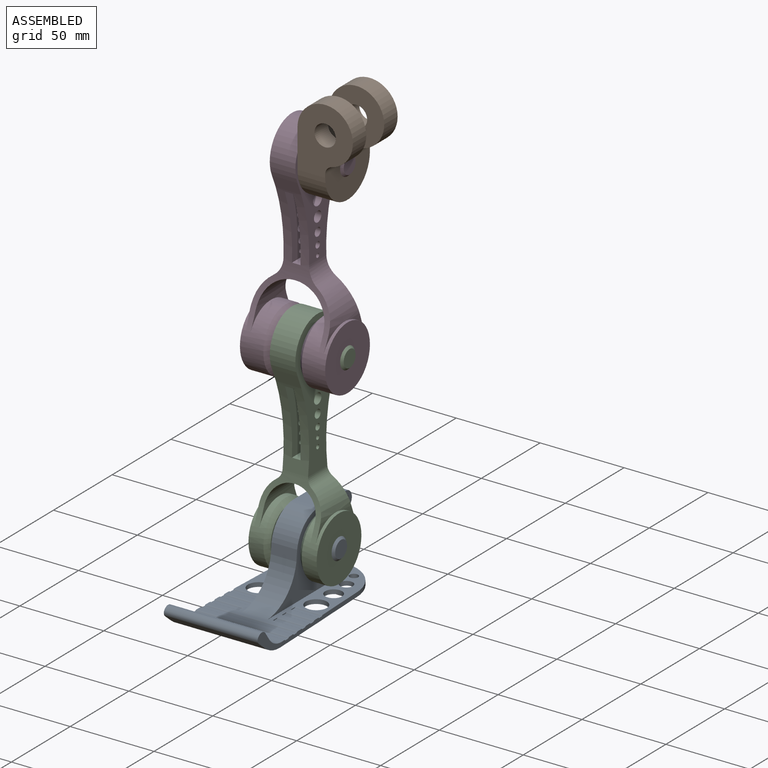
[diagram: assembled view]
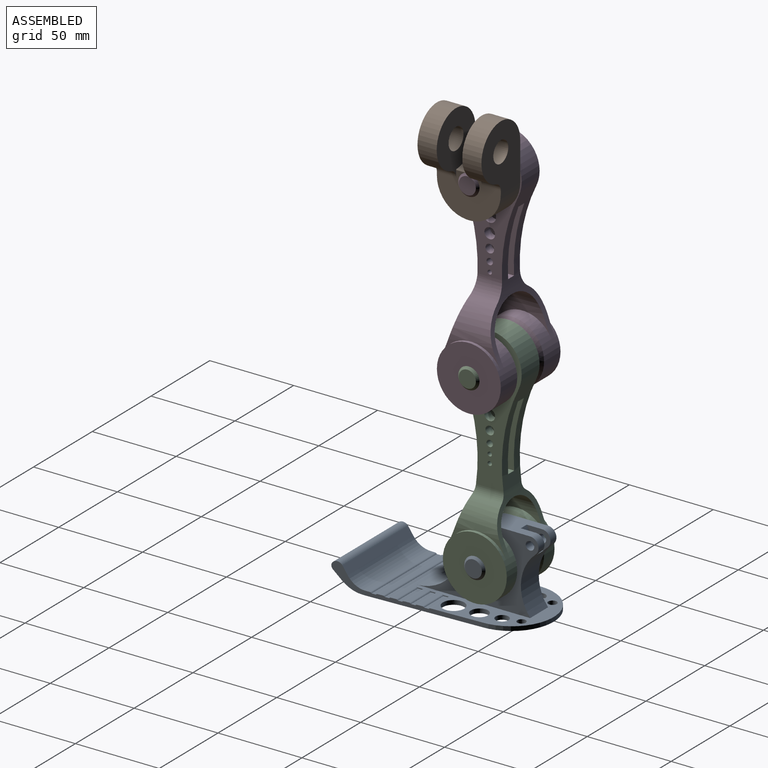
[diagram: assembled view, second angle]
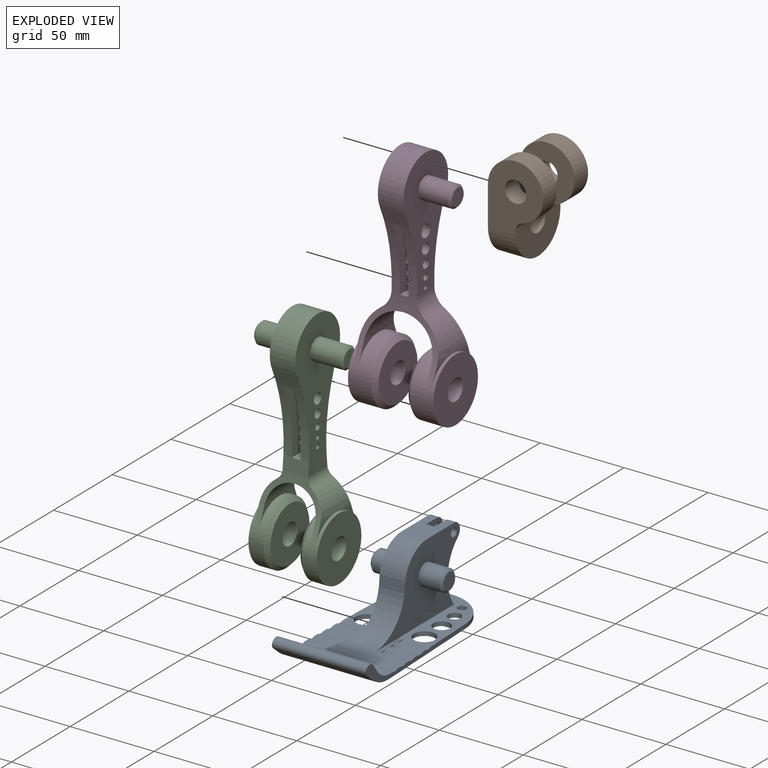
[diagram: exploded view]
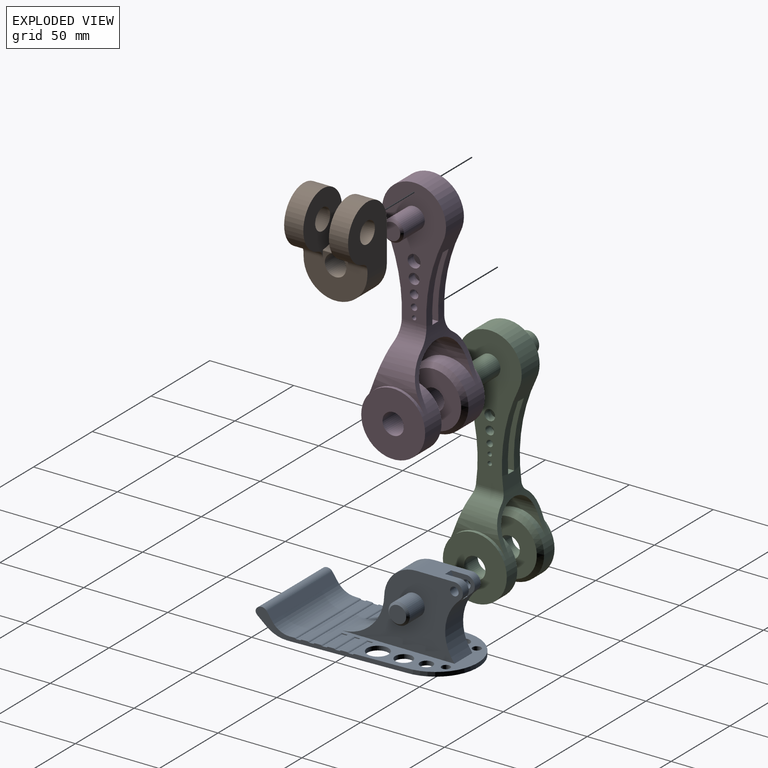
[diagram: exploded view, second angle]
ASSEMBLY  parts=4 mates=3
PART A: 97 faces, bbox 55.9x113x47.5 mm
  f0: plane 77.94x54.68mm, normal (0,0,1), area 2114.6mm2, adj f4,f8,f9,f22,f25,f26,f50,f52
  f1: plane 94.46x55.88mm, normal (0,0,-1), area 3970.7mm2, adj f2,f3,f8,f9,f10,f11,f16,f42
  f2: torus R=1.52mm, axis (0,0,-1), area 10.7mm2, adj f1,f39,f91
  f3: torus R=1.3mm, axis (0,0,1), area 5.1mm2, adj f1,f89
  f4: cylinder r=25.4mm len=35.06mm, axis (-1,0,0), area 575.1mm2, adj f0,f5,f23,f25,f26,f85,f86,f88
  f5: cylinder r=5.08mm len=8.92mm, axis (-1,0,0), area 62.7mm2, adj f4,f6,f26,f85
  f6: plane 22.72x15.24mm, normal (0,0,1), area 300.4mm2, adj f5,f23,f24,f25,f26,f85,f86,f87
  f7: cylinder r=2.54mm len=5.08mm, axis (1,0,0), area 81.1mm2, adj f26,f85
  f8: plane 67.32x2.77mm, normal (-1,0.04,0), area 163.1mm2, adj f0,f1,f11,f12,f17,f51,f53,f54
  f9: plane 67.32x2.77mm, normal (1,0.04,0), area 163.1mm2, adj f0,f1,f10,f12,f17,f54,f55,f59
  f10: plane 20.5x14.03mm, normal (1,0,0), area 103.9mm2, adj f1,f9,f13,f14,f15,f16,f17,f18
  f11: plane 20.5x14.03mm, normal (-1,0,0), area 103.9mm2, adj f1,f8,f13,f14,f15,f16,f17,f18
  f12: plane 55.31x3.05mm, normal (0,0,1), area 168.2mm2, adj f8,f9,f66,f69
  f13: plane 55.88x0.12mm, normal (0,-0.77,0.64), area 8.4mm2, adj f10,f11,f14,f20
  f14: cylinder r=2.54mm len=55.88mm, axis (-1,0,0), area 223mm2, adj f10,f11,f13,f15
  f15: plane 55.88x5.39mm, normal (0,-0.64,-0.77), area 393.2mm2, adj f10,f11,f14,f16
  f16: cylinder r=19.05mm len=55.88mm, axis (-1,0,0), area 743.2mm2, adj f1,f10,f11,f15
  f17: plane 55.88x2.62mm, normal (0,0,1), area 146.3mm2, adj f8,f9,f10,f11,f18,f68
  f18: cylinder r=12.7mm len=55.88mm, axis (-1,0,0), area 681.2mm2, adj f10,f11,f17,f19
  f19: plane 55.88x4.45mm, normal (0,0.82,0.57), area 303.8mm2, adj f10,f11,f18,f20
  f20: cylinder r=3.81mm len=55.88mm, axis (-1,0,0), area 390.2mm2, adj f10,f11,f13,f19
  f21: cylinder r=26.05mm len=25.39mm, axis (-1,0,0), area 600.5mm2, adj f22,f24,f25,f26
  f22: plane 24.51x15.24mm, normal (0,0,-1), area 373.6mm2, adj f0,f21,f25,f26
  f23: cylinder r=5.08mm len=8.92mm, axis (-1,0,0), area 62.7mm2, adj f4,f6,f25,f86
  f24: cylinder r=19.05mm len=19.04mm, axis (-1,0,0), area 448.8mm2, adj f6,f21,f25,f26
  f25: plane 72.02x43.98mm, normal (1,0,0), area 1683.5mm2, adj f0,f4,f6,f21,f22,f23,f24,f27
  f26: plane 72.02x43.98mm, normal (-1,0,0), area 1683.5mm2, adj f0,f4,f5,f6,f7,f21,f22,f24
  f27: cylinder r=6.35mm len=12.7mm, axis (-1,0,0), area 506.7mm2, adj f25,f32
  f28: plane 10.16x10.16mm, normal (1,0,0), area 81.1mm2, adj f32
  f29: cylinder r=6.35mm len=12.7mm, axis (1,0,0), area 506.7mm2, adj f26,f31
  f30: plane 10.16x10.16mm, normal (-1,0,0), area 81.1mm2, adj f31
  f31: cone r=6.35mm half-angle=45deg, axis (1,0,0), area 64.5mm2, adj f29,f30
  f32: cone r=5.08mm half-angle=45deg, axis (-1,0,0), area 64.5mm2, adj f27,f28
  f33: plane 2.44x2.22mm, normal (0,0,-1), area 2.2mm2, adj f42,f92
  f34: plane 3.05x3.05mm, normal (0,0,-1), area 7.3mm2, adj f49
  f35: plane 3.05x3.05mm, normal (0,0,-1), area 7.3mm2, adj f48
  f36: plane 3.05x3.05mm, normal (0,0,-1), area 7.3mm2, adj f47
  f37: plane 3.05x3.05mm, normal (0,0,-1), area 7.3mm2, adj f46
  f38: plane 3.05x3.05mm, normal (0,0,-1), area 7.3mm2, adj f45
  f39: plane 2.44x2.22mm, normal (0,0,-1), area 2.2mm2, adj f2,f91
  f40: plane 3.05x3.05mm, normal (0,0,-1), area 7.3mm2, adj f44
  f41: plane 3.05x3.05mm, normal (0,0,-1), area 7.3mm2, adj f43
  f42: torus R=1.52mm, axis (0,0,-1), area 10.7mm2, adj f1,f33,f92
  f43: torus R=1.52mm, axis (0,0,-1), area 21.8mm2, adj f1,f41
  f44: torus R=1.52mm, axis (0,0,-1), area 21.8mm2, adj f1,f40
  f45: torus R=1.52mm, axis (0,0,-1), area 21.8mm2, adj f1,f38
  f46: torus R=1.52mm, axis (0,0,-1), area 21.8mm2, adj f1,f37
  f47: torus R=1.52mm, axis (0,0,-1), area 21.8mm2, adj f1,f36
  f48: torus R=1.52mm, axis (0,0,-1), area 21.8mm2, adj f1,f35
  f49: torus R=1.52mm, axis (0,0,-1), area 21.8mm2, adj f1,f34
  f50: plane 4.57x0.51mm, normal (-1,0,0), area 1.6mm2, adj f0,f51,f76,f77
  f51: plane 16.7x2.54mm, normal (0,0,1), area 42.3mm2, adj f8,f50,f76,f77
  f52: plane 4.57x0.51mm, normal (-1,0,0), area 1.6mm2, adj f0,f53,f72,f73
  f53: plane 16.39x2.54mm, normal (0,0,1), area 41.5mm2, adj f8,f52,f72,f73
  f54: plane 55.6x2.54mm, normal (0,0,1), area 141mm2, adj f8,f9,f68,f69
  f55: plane 54.98x2.54mm, normal (0,0,1), area 139.4mm2, adj f8,f9,f66,f67
  f56: plane 4.57x0.51mm, normal (-1,0,0), area 1.6mm2, adj f0,f57,f64,f65
  f57: plane 17.01x2.54mm, normal (0,0,1), area 43.1mm2, adj f8,f56,f64,f65
  f58: plane 4.57x0.51mm, normal (1,0,0), area 1.6mm2, adj f0,f59,f78,f79
  f59: plane 17.01x2.54mm, normal (0,0,1), area 43.1mm2, adj f9,f58,f78,f79
  f60: plane 4.57x0.51mm, normal (1,0,0), area 1.6mm2, adj f0,f61,f74,f75
  f61: plane 16.7x2.54mm, normal (0,0,1), area 42.3mm2, adj f9,f60,f74,f75
  f62: plane 4.57x0.51mm, normal (1,0,0), area 1.6mm2, adj f0,f63,f70,f71
  f63: plane 16.39x2.54mm, normal (0,0,1), area 41.5mm2, adj f9,f62,f70,f71
  f64: cylinder r=1.27mm len=17.06mm, axis (-1,0,0), area 20.1mm2, adj f0,f8,f56,f57
  f65: cylinder r=1.27mm len=16.91mm, axis (-1,0,0), area 19.9mm2, adj f0,f8,f56,f57
  f66: cylinder r=1.27mm len=55.06mm, axis (-1,0,0), area 64.8mm2, adj f8,f9,f12,f55
  f67: cylinder r=1.27mm len=54.77mm, axis (-1,0,0), area 64.4mm2, adj f0,f8,f9,f55
  f68: cylinder r=1.27mm len=55.69mm, axis (-1,0,0), area 65.5mm2, adj f8,f9,f17,f54
  f69: cylinder r=1.27mm len=55.39mm, axis (-1,0,0), area 65.2mm2, adj f8,f9,f12,f54
  f70: cylinder r=1.27mm len=16.43mm, axis (-1,0,0), area 19.3mm2, adj f0,f9,f62,f63
  f71: cylinder r=1.27mm len=16.28mm, axis (-1,0,0), area 19.2mm2, adj f0,f9,f62,f63
  f72: cylinder r=1.27mm len=16.43mm, axis (-1,0,0), area 19.3mm2, adj f0,f8,f52,f53
  f73: cylinder r=1.27mm len=16.28mm, axis (-1,0,0), area 19.2mm2, adj f0,f8,f52,f53
  f74: cylinder r=1.27mm len=16.74mm, axis (-1,0,0), area 19.7mm2, adj f0,f9,f60,f61
  f75: cylinder r=1.27mm len=16.6mm, axis (-1,0,0), area 19.5mm2, adj f0,f9,f60,f61
  f76: cylinder r=1.27mm len=16.74mm, axis (-1,0,0), area 19.7mm2, adj f0,f8,f50,f51
  f77: cylinder r=1.27mm len=16.6mm, axis (-1,0,0), area 19.5mm2, adj f0,f8,f50,f51
  f78: cylinder r=1.27mm len=17.06mm, axis (-1,0,0), area 20.1mm2, adj f0,f9,f58,f59
  f79: cylinder r=1.27mm len=16.91mm, axis (-1,0,0), area 19.9mm2, adj f0,f9,f58,f59
  f80: plane 2.54x0.02mm, normal (0,-1,0), area 0mm2, adj f0,f1,f8,f82
  f81: plane 2.54x0.02mm, normal (0,-1,0), area 0mm2, adj f0,f1,f9,f82
  f82: cylinder r=25.19mm len=50.38mm, axis (0,0,-1), area 201mm2, adj f0,f1,f80,f81
  f83: torus R=1.3mm, axis (0,0,1), area 5.1mm2, adj f1,f90
  f84: cylinder r=2.54mm len=5.08mm, axis (1,0,0), area 81.1mm2, adj f25,f86
  f85: plane 14.13x11.43mm, normal (1,0,0), area 95.1mm2, adj f4,f5,f6,f7,f87,f88
  f86: plane 14.13x11.43mm, normal (-1,0,0), area 95.1mm2, adj f4,f6,f23,f84,f87,f88
  f87: plane 7.56x5.08mm, normal (0,0.92,0.39), area 41.7mm2, adj f6,f85,f86,f88
  f88: cylinder r=6.35mm len=6.7mm, axis (1,0,0), area 42.1mm2, adj f4,f85,f86,f87
  f89: cylinder r=2.54mm len=5.08mm, axis (0,0,1), area 44.6mm2, adj f0,f1,f3
  f90: cylinder r=2.54mm len=5.08mm, axis (0,0,1), area 44.6mm2, adj f0,f1,f83
  f91: cylinder r=5.08mm len=10.16mm, axis (0,0,1), area 86mm2, adj f0,f1,f2,f39
  f92: cylinder r=5.08mm len=10.16mm, axis (0,0,1), area 86mm2, adj f0,f1,f33,f42
  f93: cylinder r=6.35mm len=12.7mm, axis (0,0,1), area 101.3mm2, adj f0,f1
  f94: cylinder r=3.81mm len=7.62mm, axis (0,0,1), area 60.8mm2, adj f0,f1
  f95: cylinder r=6.35mm len=12.7mm, axis (0,0,1), area 101.3mm2, adj f0,f1
  f96: cylinder r=3.81mm len=7.62mm, axis (0,0,1), area 60.8mm2, adj f0,f1
PART B: 20 faces, bbox 33x38.1x58.4 mm
  f0: cylinder r=6.35mm len=12.7mm, axis (0,1,0), area 456mm2, adj f4,f11
  f1: cylinder r=16.51mm len=33.02mm, axis (0,1,0), area 844.4mm2, adj f4,f6,f11,f13
  f2: plane 38.1x24.9mm, normal (1,0,0), area 577.1mm2, adj f3,f4,f5,f7,f11,f12,f13,f14
  f3: cylinder r=19.05mm len=38.1mm, axis (-1,0,0), area 988.1mm2, adj f2,f4,f5,f6
  f4: plane 39.37x33.02mm, normal (0,1,0), area 896.7mm2, adj f0,f1,f2,f3,f6,f13
  f5: plane 39.37x33.02mm, normal (0,-1,0), area 896.7mm2, adj f2,f3,f6,f8,f9,f14
  f6: plane 41.91x38.1mm, normal (-1,0,0), area 1215.6mm2, adj f1,f3,f4,f5,f7,f9,f11,f12
  f7: cylinder r=6.35mm len=16.51mm, axis (1,0,0), area 658.7mm2, adj f2,f6,f15,f18
  f8: cylinder r=6.35mm len=12.7mm, axis (0,1,0), area 456mm2, adj f5,f12
  f9: cylinder r=16.51mm len=33.02mm, axis (0,1,0), area 844.4mm2, adj f5,f6,f12,f14
  f10: cylinder r=16.51mm len=15.29mm, axis (0,-1,0), area 291.5mm2, adj f11,f12,f15,f16,f17,f18,f19
  f11: plane 37.49x33.02mm, normal (0,-1,0), area 735.6mm2, adj f0,f1,f2,f6,f10,f13,f17,f19
  f12: plane 37.49x33.02mm, normal (0,1,0), area 735.6mm2, adj f2,f6,f8,f9,f10,f14,f16,f19
  f13: cylinder r=5.08mm len=11.43mm, axis (0,1,0), area 77.4mm2, adj f1,f2,f4,f11
  f14: cylinder r=5.08mm len=11.43mm, axis (0,1,0), area 77.4mm2, adj f2,f5,f9,f12
  f15: bspline ~2.72x0.6mm, area 0.6mm2, adj f7,f10,f16
  f16: cylinder r=0.51mm len=5.15mm, axis (0,-1,0), area 4mm2, adj f2,f10,f12,f15
  f17: cylinder r=0.51mm len=5.15mm, axis (0,-1,0), area 4mm2, adj f2,f10,f11,f18
  f18: bspline ~2.72x0.6mm, area 0.6mm2, adj f7,f10,f17
  f19: cylinder r=0.64mm len=15.24mm, axis (0,-1,0), area 26.7mm2, adj f6,f10,f11,f12
PART C: 48 faces, bbox 53.3x38.1x142.2 mm
  f0: cylinder r=101.6mm len=87.7mm, axis (-1,0,0), area 975.1mm2, adj f2,f3,f4,f5,f6,f7,f13,f14
  f1: cylinder r=101.6mm len=87.7mm, axis (-1,0,0), area 974.7mm2, adj f2,f3,f4,f5,f6,f7,f9,f10
  f2: cylinder r=15.24mm len=30.48mm, axis (0,1,0), area 970.1mm2, adj f0,f1,f7,f9,f10,f13,f14,f19
  f3: cylinder r=18.41mm len=26.39mm, axis (0,1,0), area 372.4mm2, adj f0,f1,f5,f11,f15,f19
  f4: cylinder r=18.41mm len=26.39mm, axis (0,1,0), area 372.4mm2, adj f0,f1,f6,f7,f12,f18
  f5: cylinder r=6.35mm len=18.09mm, axis (0,1,0), area 106.3mm2, adj f0,f1,f3,f16
  f6: cylinder r=6.35mm len=18.09mm, axis (0,1,0), area 106.3mm2, adj f0,f1,f4,f17
  f7: cylinder r=19.05mm len=38.1mm, axis (-1,0,0), area 927.7mm2, adj f0,f1,f2,f4,f9,f12,f13,f18
  f8: cylinder r=6.35mm len=12.7mm, axis (1,0,0), area 456mm2, adj f21,f23
  f9: plane 10.35x9.56mm, normal (1,0,0), area 16.7mm2, adj f1,f2,f7
  f10: plane 10.35x9.56mm, normal (-1,0,0), area 16.7mm2, adj f1,f2,f19
  f11: plane 10.35x9.56mm, normal (1,0,0), area 16.7mm2, adj f1,f3,f19
  f12: plane 10.35x9.56mm, normal (-1,0,0), area 16.7mm2, adj f1,f4,f7
  f13: plane 10.35x9.56mm, normal (1,0,0), area 16.7mm2, adj f0,f2,f7
  f14: plane 10.35x9.56mm, normal (-1,0,0), area 16.7mm2, adj f0,f2,f19
  f15: plane 10.35x9.56mm, normal (1,0,0), area 16.7mm2, adj f0,f3,f19
  f16: plane 84.96x38.1mm, normal (1,0,0), area 1801.6mm2, adj f0,f1,f5,f27,f28,f37,f38,f39
  f17: plane 84.96x38.1mm, normal (-1,0,0), area 1801.6mm2, adj f0,f1,f6,f27,f35,f42,f43,f44
  f18: plane 10.35x9.56mm, normal (-1,0,0), area 16.7mm2, adj f0,f4,f7
  f19: cylinder r=19.05mm len=38.1mm, axis (-1,0,0), area 927.7mm2, adj f0,f1,f2,f3,f10,f11,f14,f15
  f20: plane 38.1x38.1mm, normal (1,0,0), area 1013.4mm2, adj f19,f22
  f21: plane 38.1x38.1mm, normal (-1,0,0), area 1013.4mm2, adj f7,f8
  f22: cylinder r=6.35mm len=12.7mm, axis (1,0,0), area 456mm2, adj f20,f24
  f23: plane 33.02x33.02mm, normal (1,0,0), area 729.7mm2, adj f8,f26
  f24: plane 33.02x33.02mm, normal (-1,0,0), area 729.7mm2, adj f22,f25
  f25: cone r=19.05mm half-angle=45deg, axis (1,0,0), area 401.3mm2, adj f19,f24
  f26: cone r=16.51mm half-angle=45deg, axis (-1,0,0), area 401.3mm2, adj f7,f23
  f27: cylinder r=19.05mm len=38.1mm, axis (-1,0,0), area 1171.2mm2, adj f0,f1,f16,f17
  f28: cylinder r=6.35mm len=17.78mm, axis (-1,0,0), area 709.4mm2, adj f16,f30
  f29: plane 10.16x10.16mm, normal (1,0,0), area 81.1mm2, adj f30
  f30: cone r=5.08mm half-angle=45deg, axis (-1,0,0), area 64.5mm2, adj f28,f29
  f31: plane 26.39x5.08mm, normal (0,0,-1), area 134.1mm2, adj f0,f1,f32,f34
  f32: plane 40.64x26.39mm, normal (1,0,0), area 650.1mm2, adj f0,f1,f31,f33,f42,f43,f44,f45
  f33: plane 14.87x5.08mm, normal (0,0,1), area 75.5mm2, adj f0,f1,f32,f34
  f34: plane 40.64x26.39mm, normal (-1,0,0), area 650.1mm2, adj f0,f1,f31,f33,f37,f38,f39,f40
  f35: cylinder r=6.35mm len=17.78mm, axis (1,0,0), area 709.4mm2, adj f17,f47
  f36: plane 10.16x10.16mm, normal (-1,0,0), area 81.1mm2, adj f47
  f37: cylinder r=1.91mm len=5.08mm, axis (1,0,0), area 60.8mm2, adj f16,f34
  f38: cylinder r=1.27mm len=5.08mm, axis (1,0,0), area 40.5mm2, adj f16,f34
  f39: cylinder r=1.27mm len=5.08mm, axis (1,0,0), area 40.5mm2, adj f16,f34
  f40: cylinder r=2.54mm len=5.08mm, axis (1,0,0), area 81.1mm2, adj f16,f34
  f41: cylinder r=3.17mm len=6.35mm, axis (1,0,0), area 101.3mm2, adj f16,f34
  f42: cylinder r=1.91mm len=5.08mm, axis (1,0,0), area 60.8mm2, adj f17,f32
  f43: cylinder r=1.27mm len=5.08mm, axis (1,0,0), area 40.5mm2, adj f17,f32
  f44: cylinder r=1.27mm len=5.08mm, axis (1,0,0), area 40.5mm2, adj f17,f32
  f45: cylinder r=2.54mm len=5.08mm, axis (1,0,0), area 81.1mm2, adj f17,f32
  f46: cylinder r=3.17mm len=6.35mm, axis (1,0,0), area 101.3mm2, adj f17,f32
  f47: cone r=5.08mm half-angle=45deg, axis (1,0,0), area 64.5mm2, adj f35,f36
PART D: 47 faces, bbox 52.1x38.2x142.3 mm
  f0: cylinder r=101.6mm len=87.7mm, axis (-1,0,0), area 964.8mm2, adj f2,f3,f4,f5,f7,f12,f13,f14
  f1: cylinder r=101.6mm len=87.7mm, axis (-1,0,0), area 964.4mm2, adj f2,f3,f4,f5,f8,f9,f10,f11
  f2: cylinder r=23.61mm len=27.14mm, axis (0,1,0), area 470mm2, adj f0,f1,f5,f7,f11,f46
  f3: cylinder r=20.32mm len=40.64mm, axis (0,1,0), area 1216.7mm2, adj f0,f1,f5,f8,f9,f12,f13,f17
  f4: cylinder r=23.61mm len=27.14mm, axis (0,1,0), area 470mm2, adj f0,f1,f10,f14,f17,f45
  f5: cylinder r=19.05mm len=38.1mm, axis (-1,0,0), area 1536.5mm2, adj f0,f1,f2,f3,f7,f8,f11,f12
  f6: cylinder r=6.35mm len=16.51mm, axis (1,0,0), area 658.7mm2, adj f19,f21
  f7: plane 8.59x8.17mm, normal (-1,0,-0.04), area 11.2mm2, adj f0,f2,f5
  f8: plane 10.35x9.56mm, normal (1,0,0), area 16.7mm2, adj f1,f3,f5
  f9: plane 10.35x9.56mm, normal (-1,0,0), area 16.7mm2, adj f1,f3,f17
  f10: plane 8.59x8.17mm, normal (1,0,-0.04), area 11.2mm2, adj f1,f4,f17
  f11: plane 8.59x8.17mm, normal (-1,0,-0.04), area 11.2mm2, adj f1,f2,f5
  f12: plane 10.35x9.56mm, normal (1,0,0), area 16.7mm2, adj f0,f3,f5
  f13: plane 10.35x9.56mm, normal (-1,0,0), area 16.7mm2, adj f0,f3,f17
  f14: plane 8.59x8.17mm, normal (1,0,-0.04), area 11.2mm2, adj f0,f4,f17
  f15: plane 75.32x38.1mm, normal (1,0,0), area 1613mm2, adj f0,f1,f25,f26,f35,f36,f37,f38
  f16: plane 75.32x38.1mm, normal (-1,0,0), area 1557.2mm2, adj f0,f1,f25,f34,f40,f41,f42,f43
  f17: cylinder r=19.05mm len=38.1mm, axis (-1,0,0), area 1536.5mm2, adj f0,f1,f3,f4,f9,f10,f13,f14
  f18: plane 38.1x38.1mm, normal (1,0,0), area 1013.4mm2, adj f17,f20
  f19: plane 38.1x38.1mm, normal (-1,0,0), area 1013.4mm2, adj f5,f6
  f20: cylinder r=6.35mm len=16.51mm, axis (1,0,0), area 658.7mm2, adj f18,f22
  f21: plane 33.02x33.02mm, normal (1,0,0), area 729.7mm2, adj f6,f24
  f22: plane 33.02x33.02mm, normal (-1,0,0), area 729.7mm2, adj f20,f23
  f23: cone r=19.05mm half-angle=45deg, axis (1,0,0), area 401.3mm2, adj f17,f22
  f24: cone r=16.51mm half-angle=45deg, axis (-1,0,0), area 401.3mm2, adj f5,f21
  f25: cylinder r=19.05mm len=38.1mm, axis (-1,0,0), area 1171.2mm2, adj f0,f1,f15,f16
  f26: cylinder r=6.35mm len=17.78mm, axis (-1,0,0), area 709.4mm2, adj f15,f28
  f27: plane 10.16x10.16mm, normal (1,0,0), area 81.1mm2, adj f28
  f28: cone r=5.08mm half-angle=45deg, axis (-1,0,0), area 64.5mm2, adj f26,f27
  f29: plane 27.04x5.08mm, normal (0,0,-1), area 137.4mm2, adj f0,f1,f30,f32
  f30: plane 40.64x27.04mm, normal (1,0,0), area 620.1mm2, adj f0,f1,f29,f31,f40,f41,f42,f43
  f31: plane 14.77x5.08mm, normal (0,0,1), area 75mm2, adj f0,f1,f30,f32
  f32: plane 40.64x27.04mm, normal (-1,0,0), area 620.1mm2, adj f0,f1,f29,f31,f35,f36,f37,f38
  f33: plane 12.7x12.7mm, normal (-1,0,0), area 126.7mm2, adj f34
  f34: cone r=6.35mm half-angle=45deg, axis (-1,0,0), area 78.8mm2, adj f16,f33
  f35: cylinder r=2.54mm len=5.08mm, axis (1,0,0), area 81.1mm2, adj f15,f32
  f36: cylinder r=1.91mm len=5.08mm, axis (1,0,0), area 60.8mm2, adj f15,f32
  f37: cylinder r=1.27mm len=5.08mm, axis (1,0,0), area 40.5mm2, adj f15,f32
  f38: cylinder r=3.17mm len=6.35mm, axis (1,0,0), area 101.3mm2, adj f15,f32
  f39: cylinder r=3.81mm len=7.62mm, axis (1,0,0), area 121.6mm2, adj f15,f32
  f40: cylinder r=2.54mm len=5.08mm, axis (1,0,0), area 81.1mm2, adj f16,f30
  f41: cylinder r=1.91mm len=5.08mm, axis (1,0,0), area 60.8mm2, adj f16,f30
  f42: cylinder r=1.27mm len=5.08mm, axis (1,0,0), area 40.5mm2, adj f16,f30
  f43: cylinder r=3.17mm len=6.35mm, axis (1,0,0), area 101.3mm2, adj f16,f30
  f44: cylinder r=3.81mm len=7.62mm, axis (1,0,0), area 121.6mm2, adj f16,f30
  f45: cylinder r=12.7mm len=16.62mm, axis (0,1,0), area 192.8mm2, adj f0,f1,f4,f15
  f46: cylinder r=12.7mm len=16.62mm, axis (0,1,0), area 192.8mm2, adj f0,f1,f2,f16
PLACE A t=(10.62,134.68,-47.61)mm
PLACE B rot(axis=(1,0,0),0deg) t=(36.02,134.68,183.53)mm
PLACE C rot(axis=(1,0,0),0deg) t=(10.62,134.68,56.53)mm
PLACE D rot(axis=(1,0,0),0deg) t=(36.02,134.68,160.67)mm
MATE revolute C.f27 <-> D.f5  axis (1,0,0) through (36.02,134.68,56.53)mm
MATE revolute B.f3 <-> D.f25  axis (1,0,0) through (36.02,134.68,160.67)mm
MATE revolute A.f27 <-> C.f7  axis (1,0,0) through (30.94,134.68,-47.61)mm
